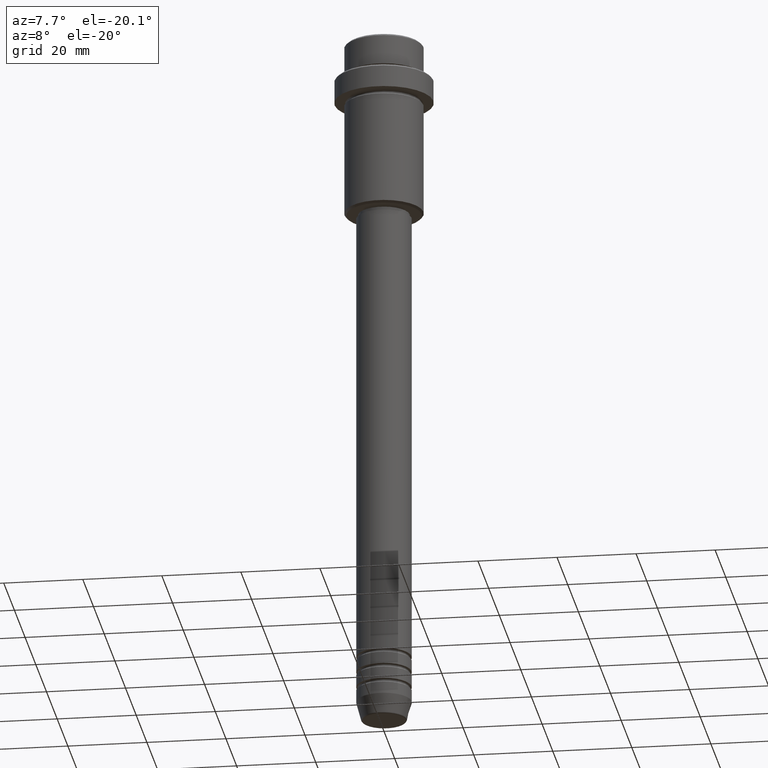
[diagram: clean part render]
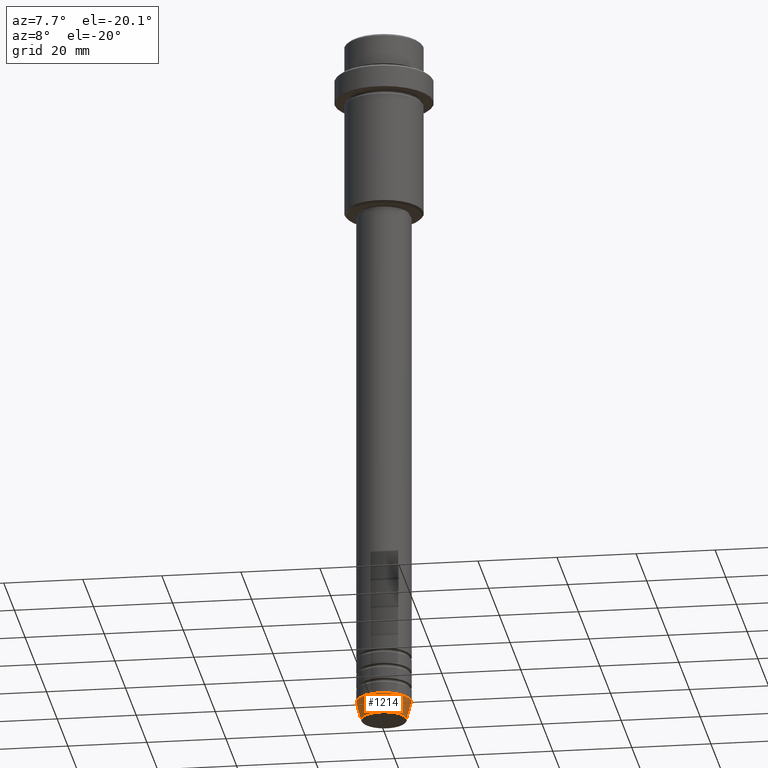
[diagram: same view with one face highlighted and labeled with its STEP entity id]
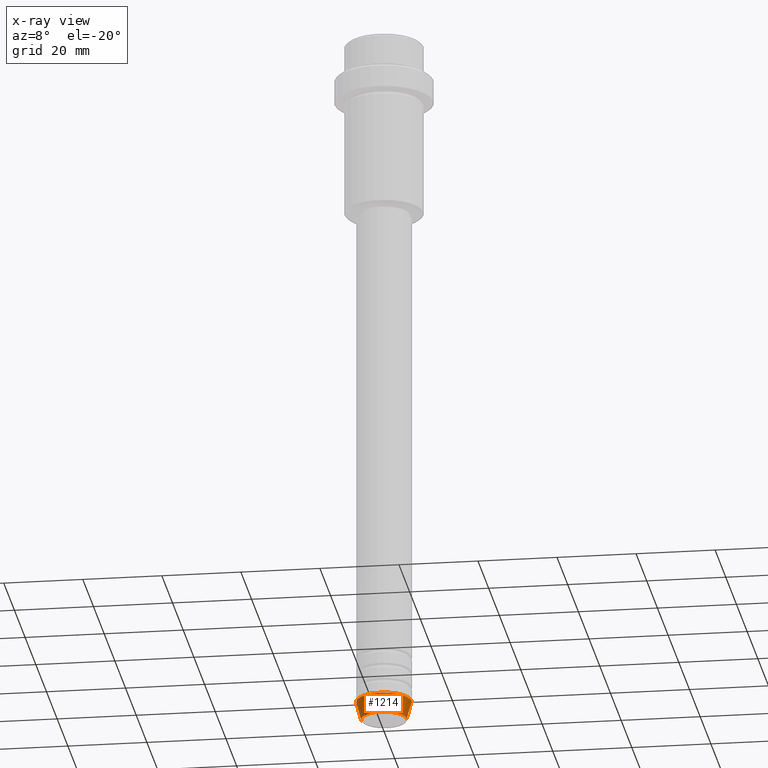
[diagram: x-ray of the same camera — body ghosted, the highlighted face saturated]
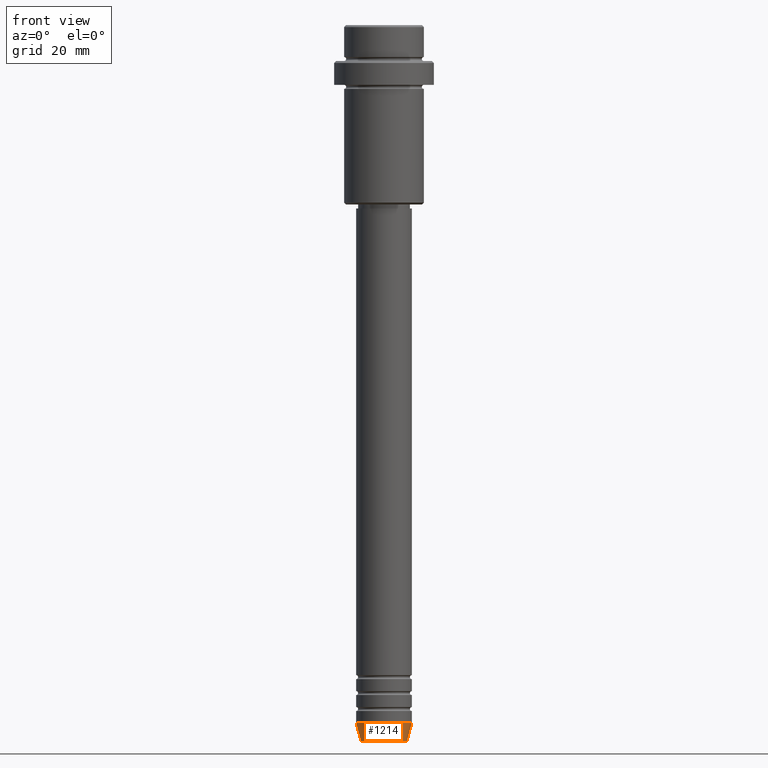
[diagram: same view with one face highlighted and labeled with its STEP entity id]
A machine part, auxiliary view. The second image highlights one B-rep face of the part: STEP entity #1214.
The next image is the same camera in x-ray: the body ghosted, the highlighted face saturated — about 0% of this face is hidden behind the body in this view.
A second angle (front view) of the same face is appended — the face is thin or edge-on in the first view.
In plain terms, the highlighted conical surface has half-angle 15 deg.
Its self-contained STEP definition (entity closure, byte-faithful):
#43 = EDGE_CURVE ( 'NONE', #851, #901, #791, .T. ) ;
#68 = AXIS2_PLACEMENT_3D ( 'NONE', #816, #267, #1247 ) ;
#87 = AXIS2_PLACEMENT_3D ( 'NONE', #500, #710, #807 ) ;
#144 = EDGE_CURVE ( 'NONE', #775, #826, #891, .T. ) ;
#146 = VECTOR ( 'NONE', #902, 1000.000000000000114 ) ;
#248 = CARTESIAN_POINT ( 'NONE',  ( -5.759553456999437770, 7.812973149831953745E-16, -179.6294095225512422 ) ) ;
#267 = DIRECTION ( 'NONE',  ( -0.000000000000000000, -0.000000000000000000, 1.000000000000000000 ) ) ;
#278 = CONICAL_SURFACE ( 'NONE', #68, 7.000000000000000000, 0.2617993877991514617 ) ;
#500 = CARTESIAN_POINT ( 'NONE',  ( 0.000000000000000000, 0.000000000000000000, -175.0000000000000284 ) ) ;
#544 = CARTESIAN_POINT ( 'NONE',  ( -7.000000000000000000, 8.572527594031473190E-16, -175.0000000000000284 ) ) ;
#587 = FACE_OUTER_BOUND ( 'NONE', #632, .T. ) ;
#632 = EDGE_LOOP ( 'NONE', ( #1152, #661, #1137, #993 ) ) ;
#661 = ORIENTED_EDGE ( 'NONE', *, *, #1039, .T. ) ;
#669 = EDGE_CURVE ( 'NONE', #826, #901, #1161, .T. ) ;
#672 = VECTOR ( 'NONE', #1238, 1000.000000000000114 ) ;
#676 = CARTESIAN_POINT ( 'NONE',  ( 7.000000000000000000, 0.000000000000000000, -175.0000000000000284 ) ) ;
#710 = DIRECTION ( 'NONE',  ( -0.000000000000000000, -0.000000000000000000, 1.000000000000000000 ) ) ;
#775 = VERTEX_POINT ( 'NONE', #248 ) ;
#777 = CARTESIAN_POINT ( 'NONE',  ( -7.000000000000000000, 8.572527594031473190E-16, -175.0000000000000284 ) ) ;
#779 = DIRECTION ( 'NONE',  ( 1.000000000000000000, 0.000000000000000000, 0.000000000000000000 ) ) ;
#786 = AXIS2_PLACEMENT_3D ( 'NONE', #796, #1312, #779 ) ;
#791 = LINE ( 'NONE', #676, #672 ) ;
#796 = CARTESIAN_POINT ( 'NONE',  ( 0.000000000000000000, 0.000000000000000000, -179.6294095225512422 ) ) ;
#807 = DIRECTION ( 'NONE',  ( 1.000000000000000000, 0.000000000000000000, 0.000000000000000000 ) ) ;
#816 = CARTESIAN_POINT ( 'NONE',  ( 0.000000000000000000, 0.000000000000000000, -175.0000000000000284 ) ) ;
#826 = VERTEX_POINT ( 'NONE', #544 ) ;
#851 = VERTEX_POINT ( 'NONE', #1101 ) ;
#891 = LINE ( 'NONE', #777, #146 ) ;
#901 = VERTEX_POINT ( 'NONE', #1196 ) ;
#902 = DIRECTION ( 'NONE',  ( -0.2588190451025227379, 3.169619151431788361E-17, 0.9659258262890676461 ) ) ;
#934 = CIRCLE ( 'NONE', #786, 5.759553456999437770 ) ;
#993 = ORIENTED_EDGE ( 'NONE', *, *, #669, .F. ) ;
#1039 = EDGE_CURVE ( 'NONE', #775, #851, #934, .T. ) ;
#1101 = CARTESIAN_POINT ( 'NONE',  ( 5.759553456999437770, 0.000000000000000000, -179.6294095225512422 ) ) ;
#1137 = ORIENTED_EDGE ( 'NONE', *, *, #43, .T. ) ;
#1152 = ORIENTED_EDGE ( 'NONE', *, *, #144, .F. ) ;
#1161 = CIRCLE ( 'NONE', #87, 7.000000000000000000 ) ;
#1196 = CARTESIAN_POINT ( 'NONE',  ( 7.000000000000000000, 0.000000000000000000, -175.0000000000000284 ) ) ;
#1214 = ADVANCED_FACE ( 'NONE', ( #587 ), #278, .T. ) ;
#1238 = DIRECTION ( 'NONE',  ( 0.2588190451025227379, 0.000000000000000000, 0.9659258262890676461 ) ) ;
#1247 = DIRECTION ( 'NONE',  ( 1.000000000000000000, 0.000000000000000000, 0.000000000000000000 ) ) ;
#1312 = DIRECTION ( 'NONE',  ( -0.000000000000000000, -0.000000000000000000, 1.000000000000000000 ) ) ;